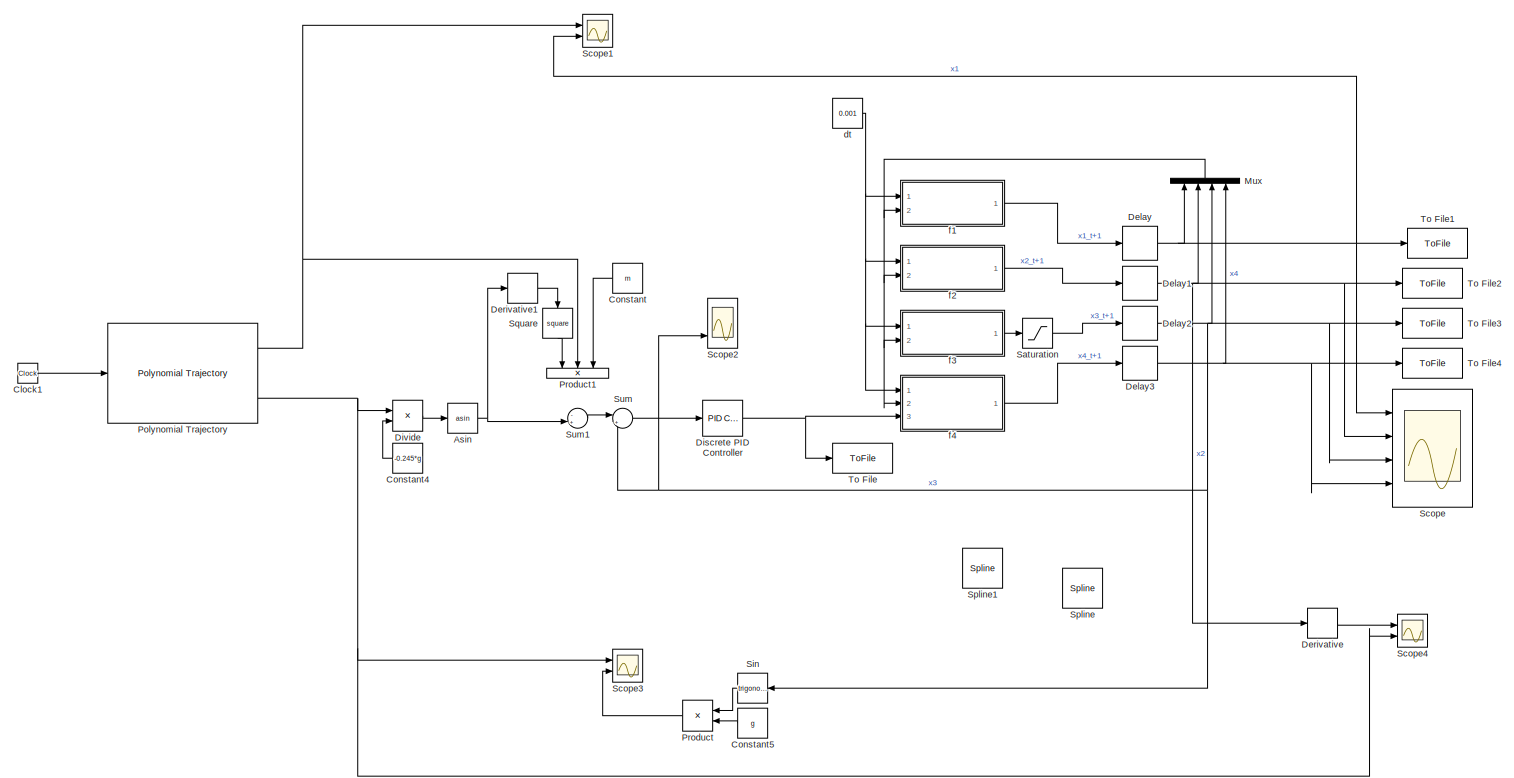
[diagram: root canvas - part 1/1, most of the canvas]
MODEL slx_5d096dcbc999
KIND model
CONFIG AbsTol = auto
CONFIG EnableMultiTasking = off
CONFIG FixedStep = 0.001
CONFIG MaxStep = auto
CONFIG MinStep = auto
CONFIG RelTol = 1e-3
CONFIG SampleTimeConstraint = Unconstrained
CONFIG SolverName = FixedStepAuto
CONFIG StartTime = 0.0
CONFIG StopTime = 20
BLOCK [Trigonometry] Asin
  Operator = asin
  Ports = [1, 1]
BLOCK [Clock] Clock1
  Decimation = 1
BLOCK [Constant] Constant
  NameLocation = top
  Value = m
BLOCK [Constant] Constant4
  NameLocation = top
  Value = -0.245*g
BLOCK [Constant] Constant5
  NameLocation = top
  Value = g
BLOCK [Delay] Delay
  DelayLength = 1
  InitialCondition = 0
  InputPortMap = u0
  Ports = [1, 1]
  SampleTime = 0.001
BLOCK [Delay] Delay1
  DelayLength = 1
  InputPortMap = u0
  Ports = [1, 1]
  SampleTime = 0.001
BLOCK [Delay] Delay2
  DelayLength = 1
  InitialCondition = 0
  InputPortMap = u0
  Ports = [1, 1]
  SampleTime = 0.001
BLOCK [Delay] Delay3
  DelayLength = 1
  InputPortMap = u0
  Ports = [1, 1]
  SampleTime = 0.001
BLOCK [Derivative] Derivative
BLOCK [Derivative] Derivative1
BLOCK [Reference] Discrete PID Controller  REF=pid_lib/PID Controller
  Ports = [1, 1]
  SourceBlock = pid_lib/PID Controller
  SourceProductBaseCode = SL
  SourceType = PID 1dof
BLOCK [Product] Divide
  Inputs = */
  Ports = [2, 1]
BLOCK [Mux] Mux
  DisplayOption = bar
  NameLocation = right
  Ports = [4, 1]
BLOCK [Reference] Polynomial Trajectory  REF=robotcorelib/Polynomial Trajectory
  Ports = [1, 3]
  SourceBlock = robotcorelib/Polynomial Trajectory
  SourceProductBaseCode = NV,RO,RR,UV
  SourceType = robotics.slcore.internal.block.PolyTrajSys
BLOCK [Product] Product
  NameLocation = top
  Ports = [2, 1]
BLOCK [Product] Product1
  Inputs = 3
  NameLocation = left
  Ports = [3, 1]
BLOCK [Saturate] Saturation
  LowerLimit = -pi/4
  UpperLimit = pi/4
BLOCK [Scope] Scope
  Floating = off
  NumInputPorts = 4
  Ports = [4]
  ScopeSpecificationString = Simulink.scopes.TimeScopeBlockCfg('CurrentConfiguration', extmgr.ConfigurationSet(extmgr.Configuration('Core','General UI',true),extmgr.Configuration('Core','Source UI',true),extmgr.Configuration('Sources','WiredSimulink',true,'DataLoggingVariableName','ScopeData1'),extmgr.Configuration('Visuals','Time Domain',true,'SerializedDisplays',{struct('MinYLimReal','-0.58917','MaxYLimReal','0.39389','YLab...<+3825ch>
BLOCK [Scope] Scope1
  Floating = off
  NumInputPorts = 2
  Ports = [2]
  ScopeSpecificationString = Simulink.scopes.TimeScopeBlockCfg('CurrentConfiguration', extmgr.ConfigurationSet(extmgr.Configuration('Core','General UI',true),extmgr.Configuration('Core','Source UI',true),extmgr.Configuration('Sources','WiredSimulink',true,'DataLoggingVariableName','ScopeData2'),extmgr.Configuration('Visuals','Time Domain',true,'SerializedDisplays',{struct('MinYLimReal','-0.6002','MaxYLimReal','0.40181','YLabe...<+1412ch>
BLOCK [Scope] Scope2
  Floating = off
  NumInputPorts = 3
  Ports = [3]
  ScopeSpecificationString = Simulink.scopes.TimeScopeBlockCfg('CurrentConfiguration', extmgr.ConfigurationSet(extmgr.Configuration('Core','General UI',true),extmgr.Configuration('Core','Source UI',true),extmgr.Configuration('Sources','WiredSimulink',true,'DataLoggingVariableName','ScopeData1'),extmgr.Configuration('Visuals','Time Domain',true,'SerializedDisplays',{struct('MinYLimReal','-1.00000','MaxYLimReal','1.00000','YLab...<+3187ch>
BLOCK [Scope] Scope3
  Floating = off
  NumInputPorts = 2
  Ports = [2]
  ScopeSpecificationString = Simulink.scopes.TimeScopeBlockCfg('CurrentConfiguration', extmgr.ConfigurationSet(extmgr.Configuration('Core','General UI',true),extmgr.Configuration('Core','Source UI',true),extmgr.Configuration('Sources','WiredSimulink',true,'DataLoggingVariableName','ScopeData2'),extmgr.Configuration('Visuals','Time Domain',true,'SerializedDisplays',{struct('MinYLimReal','-0.28098','MaxYLimReal','0.33898','YLab...<+2054ch>
BLOCK [Scope] Scope4
  Floating = off
  NumInputPorts = 2
  Ports = [2]
  ScopeSpecificationString = Simulink.scopes.TimeScopeBlockCfg('CurrentConfiguration', extmgr.ConfigurationSet(extmgr.Configuration('Core','General UI',true),extmgr.Configuration('Core','Source UI',true),extmgr.Configuration('Sources','WiredSimulink',true,'DataLoggingVariableName','ScopeData3'),extmgr.Configuration('Visuals','Time Domain',true,'SerializedDisplays',{struct('MinYLimReal','-0.63896','MaxYLimReal','0.63562','YLab...<+2054ch>
BLOCK [Trigonometry] Sin
  NameLocation = top
  Ports = [1, 1]
BLOCK [Reference] Spline  REF=sm_lib/Curves and Surfaces/Spline
  Ports = [0, 0, 0, 0, 0, 1, 1]
  SourceBlock = sm_lib/Curves and Surfaces/Spline
  SourceProductBaseCode = MS
  SourceType = Spline
BLOCK [Reference] Spline1  REF=sm_lib/Curves and Surfaces/Spline
  Ports = [0, 0, 0, 0, 0, 1, 1]
  SourceBlock = sm_lib/Curves and Surfaces/Spline
  SourceProductBaseCode = MS
  SourceType = Spline
BLOCK [Math] Square
  NameLocation = left
  Operator = square
  Ports = [1, 1]
BLOCK [Sum] Sum
  Inputs = |+-
  Ports = [2, 1]
BLOCK [Sum] Sum1
  Inputs = -+|
  Ports = [2, 1]
BLOCK [ToFile] To File
  Filename = reference.mat
  MatrixName = torque
  Ports = [1]
BLOCK [ToFile] To File1
  Filename = x1.mat
  MatrixName = x1
  Ports = [1]
BLOCK [ToFile] To File2
  Filename = x2.mat
  MatrixName = x2
  Ports = [1]
BLOCK [ToFile] To File3
  Filename = x3.mat
  MatrixName = x3
  Ports = [1]
BLOCK [ToFile] To File4
  Filename = x4.mat
  MatrixName = x4
  Ports = [1]
BLOCK [Constant] dt
  Value = 0.001
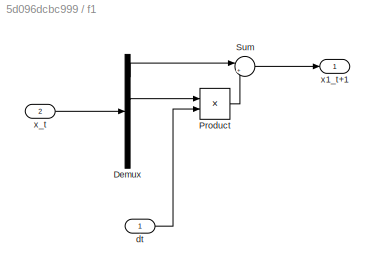
BLOCK [SubSystem] f1
  Ports = [2, 1]
  RequestExecContextInheritance = off
BLOCK [Demux] f1/Demux
  Ports = [1, 4]
BLOCK [Product] f1/Product
  Ports = [2, 1]
BLOCK [Sum] f1/Sum
  Inputs = |++
  Ports = [2, 1]
BLOCK [Inport] f1/dt
BLOCK [Outport] f1/x1_t+1
BLOCK [Inport] f1/x_t
  Port = 2
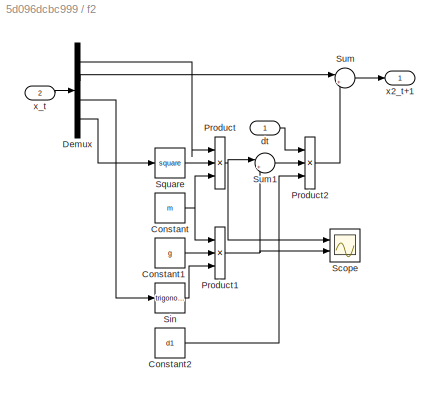
BLOCK [SubSystem] f2
  Ports = [2, 1]
  RequestExecContextInheritance = off
BLOCK [Constant] f2/Constant
  Value = m
BLOCK [Constant] f2/Constant1
  Value = g
BLOCK [Constant] f2/Constant2
  Value = d1
BLOCK [Demux] f2/Demux
  Ports = [1, 4]
BLOCK [Product] f2/Product
  Inputs = 3
  Ports = [3, 1]
BLOCK [Product] f2/Product1
  Inputs = 3
  Ports = [3, 1]
BLOCK [Product] f2/Product2
  Inputs = 3
  Ports = [3, 1]
BLOCK [Scope] f2/Scope
  Floating = off
  NumInputPorts = 2
  Ports = [2]
  ScopeSpecificationString = Simulink.scopes.TimeScopeBlockCfg('CurrentConfiguration', extmgr.ConfigurationSet(extmgr.Configuration('Core','General UI',true),extmgr.Configuration('Core','Source UI',true),extmgr.Configuration('Sources','WiredSimulink',true,'DataLoggingVariableName','ScopeData3'),extmgr.Configuration('Visuals','Time Domain',true,'SerializedDisplays',{struct('MinYLimReal','-0.000004','MaxYLimReal','0.000007','YL...<+1421ch>
BLOCK [Trigonometry] f2/Sin
  Ports = [1, 1]
BLOCK [Math] f2/Square
  Operator = square
  Ports = [1, 1]
BLOCK [Sum] f2/Sum
  Inputs = |++
  Ports = [2, 1]
BLOCK [Sum] f2/Sum1
  Inputs = |+-
  Ports = [2, 1]
BLOCK [Inport] f2/dt
BLOCK [Outport] f2/x2_t+1
BLOCK [Inport] f2/x_t
  Port = 2
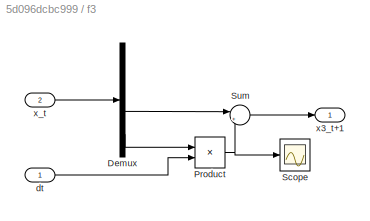
BLOCK [SubSystem] f3
  Ports = [2, 1]
  RequestExecContextInheritance = off
BLOCK [Demux] f3/Demux
  Ports = [1, 4]
BLOCK [Product] f3/Product
  Ports = [2, 1]
BLOCK [Scope] f3/Scope
  Floating = off
  NumInputPorts = 1
  Ports = [1]
  ScopeSpecificationString = Simulink.scopes.TimeScopeBlockCfg('CurrentConfiguration', extmgr.ConfigurationSet(extmgr.Configuration('Core','General UI',true),extmgr.Configuration('Core','Source UI',true),extmgr.Configuration('Sources','WiredSimulink',true,'DataLoggingVariableName','ScopeData1'),extmgr.Configuration('Visuals','Time Domain',true,'SerializedDisplays',{struct('MinYLimReal','-0.000014','MaxYLimReal','0.00005','YLa...<+1401ch>
BLOCK [Sum] f3/Sum
  Inputs = |++
  Ports = [2, 1]
BLOCK [Inport] f3/dt
BLOCK [Outport] f3/x3_t+1
BLOCK [Inport] f3/x_t
  Port = 2
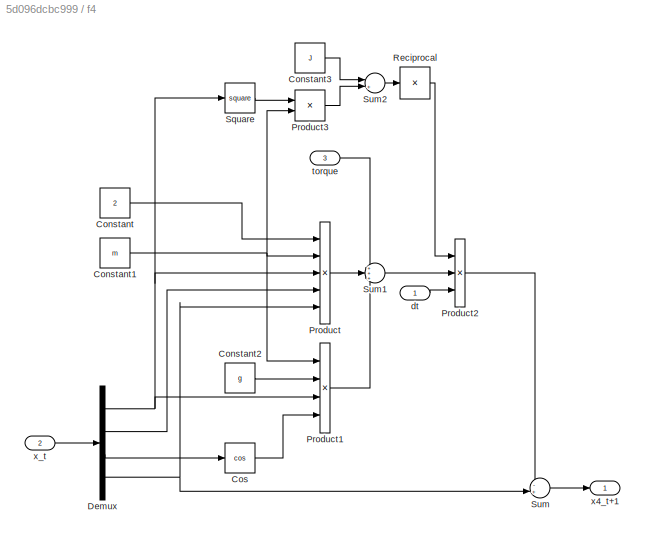
BLOCK [SubSystem] f4
  Ports = [3, 1]
  RequestExecContextInheritance = off
BLOCK [Constant] f4/Constant
  Value = 2
BLOCK [Constant] f4/Constant1
  Value = m
BLOCK [Constant] f4/Constant2
  Value = g
BLOCK [Constant] f4/Constant3
  Value = J
BLOCK [Trigonometry] f4/Cos
  Operator = cos
  Ports = [1, 1]
BLOCK [Demux] f4/Demux
  Ports = [1, 4]
BLOCK [Product] f4/Product
  Inputs = 5
  Ports = [5, 1]
BLOCK [Product] f4/Product1
  Inputs = 4
  Ports = [4, 1]
BLOCK [Product] f4/Product2
  Inputs = 3
  Ports = [3, 1]
BLOCK [Product] f4/Product3
  Ports = [2, 1]
BLOCK [Product] f4/Reciprocal
  Inputs = /
  Ports = [1, 1]
BLOCK [Math] f4/Square
  Operator = square
  Ports = [1, 1]
BLOCK [Sum] f4/Sum
  Inputs = -+|
  Ports = [2, 1]
BLOCK [Sum] f4/Sum1
  Inputs = +++
  Ports = [3, 1]
BLOCK [Sum] f4/Sum2
  Inputs = |++|
  Ports = [2, 1]
BLOCK [Inport] f4/dt
BLOCK [Inport] f4/torque
  Port = 3
BLOCK [Outport] f4/x4_t+1
BLOCK [Inport] f4/x_t
  Port = 2
NET Asin:1 -> Derivative1:1, Sum1:2
LINE Clock1:1 -> Polynomial Trajectory:1
LINE Constant4:1 -> Divide:2
LINE Constant5:1 -> Product:2
LINE Constant:1 -> Product1:3
NET Delay1:1 -> Derivative:1, Mux:2, Scope:2, To File2:1
NET Delay2:1 -> Mux:3, Scope2:3, Scope:3, Sin:1, Sum:2, To File3:1
NET Delay3:1 -> Mux:4, Scope:4, To File4:1
NET Delay:1 -> Mux:1, Scope1:2, Scope:1, To File1:1
LINE Derivative1:1 -> Square:1
LINE Derivative:1 -> Scope4:1
NET Discrete PID Controller:1 -> To File:1, f4:3
LINE Divide:1 -> Asin:1
NET Mux:1 -> f1:2, f2:2, f3:2, f4:2
NET Polynomial Trajectory:1 -> Product1:2, Scope1:1
NET Polynomial Trajectory:3 -> Divide:1, Scope3:1, Scope4:2
LINE Product:1 -> Scope3:2
LINE Saturation:1 -> Delay2:1
LINE Sin:1 -> Product:1
LINE Square:1 -> Product1:1
LINE Sum1:1 -> Sum:1
LINE Sum:1 -> Discrete PID Controller:1
NET dt:1 -> f1:1, f2:1, f3:1, f4:1
LINE f1/Demux:1 -> f1/Sum:1
LINE f1/Demux:2 -> f1/Product:1
LINE f1/Product:1 -> f1/Sum:2
LINE f1/Sum:1 -> f1/x1_t+1:1
LINE f1/dt:1 -> f1/Product:2
LINE f1/x_t:1 -> f1/Demux:1
LINE f1:1 -> Delay:1
LINE f2/Constant1:1 -> f2/Product1:2
LINE f2/Constant2:1 -> f2/Product2:3
NET f2/Constant:1 -> f2/Product1:1, f2/Product:3
LINE f2/Demux:1 -> f2/Product:1
LINE f2/Demux:2 -> f2/Sum:1
LINE f2/Demux:3 -> f2/Sin:1
LINE f2/Demux:4 -> f2/Square:1
NET f2/Product1:1 -> f2/Scope:2, f2/Sum1:2
LINE f2/Product2:1 -> f2/Sum:2
NET f2/Product:1 -> f2/Scope:1, f2/Sum1:1
LINE f2/Sin:1 -> f2/Product1:3
LINE f2/Square:1 -> f2/Product:2
LINE f2/Sum1:1 -> f2/Product2:2
LINE f2/Sum:1 -> f2/x2_t+1:1
LINE f2/dt:1 -> f2/Product2:1
LINE f2/x_t:1 -> f2/Demux:1
LINE f2:1 -> Delay1:1
LINE f3/Demux:3 -> f3/Sum:1
LINE f3/Demux:4 -> f3/Product:1
NET f3/Product:1 -> f3/Scope:1, f3/Sum:2
LINE f3/Sum:1 -> f3/x3_t+1:1
LINE f3/dt:1 -> f3/Product:2
LINE f3/x_t:1 -> f3/Demux:1
LINE f3:1 -> Saturation:1
NET f4/Constant1:1 -> f4/Product1:1, f4/Product3:2, f4/Product:2
LINE f4/Constant2:1 -> f4/Product1:2
LINE f4/Constant3:1 -> f4/Sum2:1
LINE f4/Constant:1 -> f4/Product:1
LINE f4/Cos:1 -> f4/Product1:4
NET f4/Demux:1 -> f4/Product1:3, f4/Product:3, f4/Square:1
LINE f4/Demux:2 -> f4/Product:4
LINE f4/Demux:3 -> f4/Cos:1
NET f4/Demux:4 -> f4/Product:5, f4/Sum:2
LINE f4/Product1:1 -> f4/Sum1:3
LINE f4/Product2:1 -> f4/Sum:1
LINE f4/Product3:1 -> f4/Sum2:2
LINE f4/Product:1 -> f4/Sum1:2
LINE f4/Reciprocal:1 -> f4/Product2:1
LINE f4/Square:1 -> f4/Product3:1
LINE f4/Sum1:1 -> f4/Product2:2
LINE f4/Sum2:1 -> f4/Reciprocal:1
LINE f4/Sum:1 -> f4/x4_t+1:1
LINE f4/dt:1 -> f4/Product2:3
LINE f4/torque:1 -> f4/Sum1:1
LINE f4/x_t:1 -> f4/Demux:1
LINE f4:1 -> Delay3:1
note: NET lines group one-source signal fan-out (src -> all destinations, sorted); 1:1 wires keep LINE
